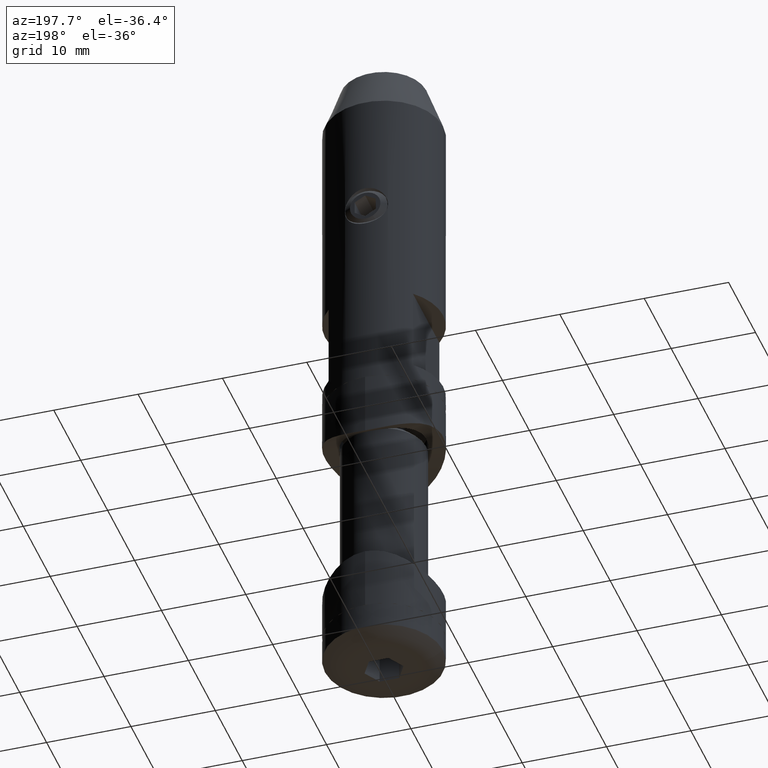
[diagram: clean part render]
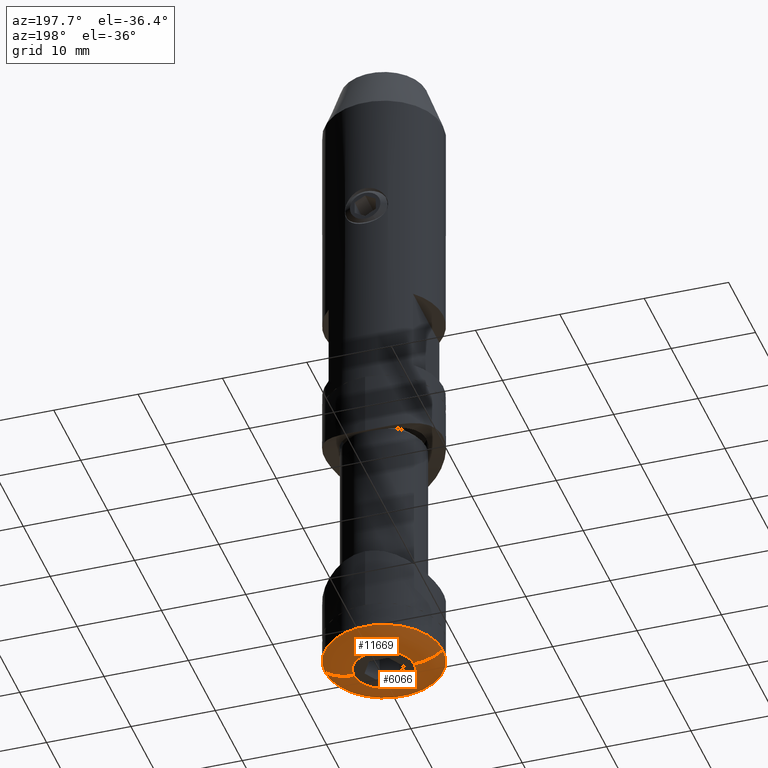
[diagram: same view with one multi-face feature highlighted, each face labeled with its STEP entity id]
A machine part, auxiliary view. The highlighted faces form ONE feature: a constant-radius fillet chain: 2 tangent blend faces with common blend radius 5.5 mm. The faces share edges in the B-rep.
Their STEP definitions:
[1] entity #6066 (Torus):
#11 = CARTESIAN_POINT ( 'NONE',  ( 3.570714360103545371, 0.000000000000000000, -17.69999999999999929 ) ) ;
#373 = VERTEX_POINT ( 'NONE', #11 ) ;
#747 = CARTESIAN_POINT ( 'NONE',  ( 0.000000000000000000, 0.000000000000000000, -16.50000000000000000 ) ) ;
#1955 = DIRECTION ( 'NONE',  ( 1.000000000000000000, 0.000000000000000000, 0.000000000000000000 ) ) ;
#2128 = DIRECTION ( 'NONE',  ( -0.000000000000000000, -0.000000000000000000, 1.000000000000000000 ) ) ;
#3526 = FACE_OUTER_BOUND ( 'NONE', #11522, .T. ) ;
#5301 = CARTESIAN_POINT ( 'NONE',  ( 0.000000000000000000, 0.000000000000000000, -17.69999999999999929 ) ) ;
#5443 = CARTESIAN_POINT ( 'NONE',  ( 6.999999999999995559, 0.000000000000000000, -16.50000000000000000 ) ) ;
#5542 = VERTEX_POINT ( 'NONE', #15590 ) ;
#6066 = ADVANCED_FACE ( 'NONE', ( #3526 ), #18689, .T. ) ;
#6271 = ORIENTED_EDGE ( 'NONE', *, *, #7629, .T. ) ;
#7108 = CIRCLE ( 'NONE', #16090, 5.499999999999998224 ) ;
#7152 = CARTESIAN_POINT ( 'NONE',  ( -3.570714360103546259, 4.372863911770297854E-16, -12.20000000000000284 ) ) ;
#7629 = EDGE_CURVE ( 'NONE', #18302, #373, #14979, .T. ) ;
#7708 = AXIS2_PLACEMENT_3D ( 'NONE', #5301, #17761, #12943 ) ;
#8269 = DIRECTION ( 'NONE',  ( -0.000000000000000000, -0.000000000000000000, 1.000000000000000000 ) ) ;
#8504 = DIRECTION ( 'NONE',  ( 1.000000000000000000, 0.000000000000000000, 0.000000000000000000 ) ) ;
#8572 = EDGE_CURVE ( 'NONE', #5542, #12116, #17415, .T. ) ;
#8800 = EDGE_CURVE ( 'NONE', #18302, #5542, #11578, .T. ) ;
#9555 = ORIENTED_EDGE ( 'NONE', *, *, #8572, .F. ) ;
#10438 = DIRECTION ( 'NONE',  ( 0.000000000000000000, -1.000000000000000000, 0.000000000000000000 ) ) ;
#11358 = CARTESIAN_POINT ( 'NONE',  ( 0.000000000000000000, 0.000000000000000000, -12.20000000000000284 ) ) ;
#11522 = EDGE_LOOP ( 'NONE', ( #18234, #6271, #14668, #9555 ) ) ;
#11578 = CIRCLE ( 'NONE', #18956, 5.499999999999996447 ) ;
#11880 = DIRECTION ( 'NONE',  ( 1.224646799147353207E-16, 1.000000000000000000, 0.000000000000000000 ) ) ;
#12116 = VERTEX_POINT ( 'NONE', #5443 ) ;
#12943 = DIRECTION ( 'NONE',  ( 1.000000000000000000, 0.000000000000000000, 0.000000000000000000 ) ) ;
#13525 = DIRECTION ( 'NONE',  ( 0.000000000000000000, 0.000000000000000000, -1.000000000000000000 ) ) ;
#13995 = AXIS2_PLACEMENT_3D ( 'NONE', #747, #2128, #8504 ) ;
#14109 = AXIS2_PLACEMENT_3D ( 'NONE', #11358, #8269, #1955 ) ;
#14163 = CARTESIAN_POINT ( 'NONE',  ( -3.570714360103545371, 6.472695752900883550E-16, -17.69999999999999929 ) ) ;
#14668 = ORIENTED_EDGE ( 'NONE', *, *, #14846, .T. ) ;
#14846 = EDGE_CURVE ( 'NONE', #373, #12116, #7108, .T. ) ;
#14979 = CIRCLE ( 'NONE', #7708, 3.570714360103545371 ) ;
#15590 = CARTESIAN_POINT ( 'NONE',  ( -6.999999999999995559, 8.572527594031468259E-16, -16.50000000000000000 ) ) ;
#16090 = AXIS2_PLACEMENT_3D ( 'NONE', #18353, #10438, #13525 ) ;
#17415 = CIRCLE ( 'NONE', #13995, 7.000000000000000000 ) ;
#17761 = DIRECTION ( 'NONE',  ( -0.000000000000000000, -0.000000000000000000, 1.000000000000000000 ) ) ;
#18234 = ORIENTED_EDGE ( 'NONE', *, *, #8800, .F. ) ;
#18275 = DIRECTION ( 'NONE',  ( -1.000000000000000000, 1.224646799147353207E-16, 0.000000000000000000 ) ) ;
#18302 = VERTEX_POINT ( 'NONE', #14163 ) ;
#18353 = CARTESIAN_POINT ( 'NONE',  ( 3.570714360103546259, 0.000000000000000000, -12.20000000000000284 ) ) ;
#18689 = TOROIDAL_SURFACE ( 'NONE', #14109, 3.570714360103546259, 5.499999999999996447 ) ;
#18956 = AXIS2_PLACEMENT_3D ( 'NONE', #7152, #11880, #18275 ) ;
[2] entity #11669 (Torus):
#11 = CARTESIAN_POINT ( 'NONE',  ( 3.570714360103545371, 0.000000000000000000, -17.69999999999999929 ) ) ;
#373 = VERTEX_POINT ( 'NONE', #11 ) ;
#1047 = AXIS2_PLACEMENT_3D ( 'NONE', #3600, #5272, #6766 ) ;
#3600 = CARTESIAN_POINT ( 'NONE',  ( 0.000000000000000000, 0.000000000000000000, -17.69999999999999929 ) ) ;
#4875 = DIRECTION ( 'NONE',  ( -0.000000000000000000, -0.000000000000000000, 1.000000000000000000 ) ) ;
#4901 = DIRECTION ( 'NONE',  ( 1.000000000000000000, 0.000000000000000000, 0.000000000000000000 ) ) ;
#5074 = DIRECTION ( 'NONE',  ( 1.000000000000000000, 0.000000000000000000, 0.000000000000000000 ) ) ;
#5272 = DIRECTION ( 'NONE',  ( -0.000000000000000000, -0.000000000000000000, 1.000000000000000000 ) ) ;
#5443 = CARTESIAN_POINT ( 'NONE',  ( 6.999999999999995559, 0.000000000000000000, -16.50000000000000000 ) ) ;
#5542 = VERTEX_POINT ( 'NONE', #15590 ) ;
#6766 = DIRECTION ( 'NONE',  ( 1.000000000000000000, 0.000000000000000000, 0.000000000000000000 ) ) ;
#7108 = CIRCLE ( 'NONE', #16090, 5.499999999999998224 ) ;
#7152 = CARTESIAN_POINT ( 'NONE',  ( -3.570714360103546259, 4.372863911770297854E-16, -12.20000000000000284 ) ) ;
#8140 = EDGE_LOOP ( 'NONE', ( #20085, #11930, #13665, #17908 ) ) ;
#8800 = EDGE_CURVE ( 'NONE', #18302, #5542, #11578, .T. ) ;
#8832 = CIRCLE ( 'NONE', #17799, 7.000000000000000000 ) ;
#9077 = CIRCLE ( 'NONE', #1047, 3.570714360103545371 ) ;
#9326 = DIRECTION ( 'NONE',  ( -0.000000000000000000, -0.000000000000000000, 1.000000000000000000 ) ) ;
#10438 = DIRECTION ( 'NONE',  ( 0.000000000000000000, -1.000000000000000000, 0.000000000000000000 ) ) ;
#10688 = EDGE_CURVE ( 'NONE', #12116, #5542, #8832, .T. ) ;
#11578 = CIRCLE ( 'NONE', #18956, 5.499999999999996447 ) ;
#11669 = ADVANCED_FACE ( 'NONE', ( #15612 ), #16385, .T. ) ;
#11880 = DIRECTION ( 'NONE',  ( 1.224646799147353207E-16, 1.000000000000000000, 0.000000000000000000 ) ) ;
#11930 = ORIENTED_EDGE ( 'NONE', *, *, #8800, .T. ) ;
#12116 = VERTEX_POINT ( 'NONE', #5443 ) ;
#13525 = DIRECTION ( 'NONE',  ( 0.000000000000000000, 0.000000000000000000, -1.000000000000000000 ) ) ;
#13665 = ORIENTED_EDGE ( 'NONE', *, *, #10688, .F. ) ;
#14025 = EDGE_CURVE ( 'NONE', #373, #18302, #9077, .T. ) ;
#14163 = CARTESIAN_POINT ( 'NONE',  ( -3.570714360103545371, 6.472695752900883550E-16, -17.69999999999999929 ) ) ;
#14846 = EDGE_CURVE ( 'NONE', #373, #12116, #7108, .T. ) ;
#15590 = CARTESIAN_POINT ( 'NONE',  ( -6.999999999999995559, 8.572527594031468259E-16, -16.50000000000000000 ) ) ;
#15612 = FACE_OUTER_BOUND ( 'NONE', #8140, .T. ) ;
#16090 = AXIS2_PLACEMENT_3D ( 'NONE', #18353, #10438, #13525 ) ;
#16385 = TOROIDAL_SURFACE ( 'NONE', #19379, 3.570714360103546259, 5.499999999999996447 ) ;
#17168 = CARTESIAN_POINT ( 'NONE',  ( 0.000000000000000000, 0.000000000000000000, -12.20000000000000284 ) ) ;
#17541 = CARTESIAN_POINT ( 'NONE',  ( 0.000000000000000000, 0.000000000000000000, -16.50000000000000000 ) ) ;
#17799 = AXIS2_PLACEMENT_3D ( 'NONE', #17541, #4875, #5074 ) ;
#17908 = ORIENTED_EDGE ( 'NONE', *, *, #14846, .F. ) ;
#18275 = DIRECTION ( 'NONE',  ( -1.000000000000000000, 1.224646799147353207E-16, 0.000000000000000000 ) ) ;
#18302 = VERTEX_POINT ( 'NONE', #14163 ) ;
#18353 = CARTESIAN_POINT ( 'NONE',  ( 3.570714360103546259, 0.000000000000000000, -12.20000000000000284 ) ) ;
#18956 = AXIS2_PLACEMENT_3D ( 'NONE', #7152, #11880, #18275 ) ;
#19379 = AXIS2_PLACEMENT_3D ( 'NONE', #17168, #9326, #4901 ) ;
#20085 = ORIENTED_EDGE ( 'NONE', *, *, #14025, .T. ) ;